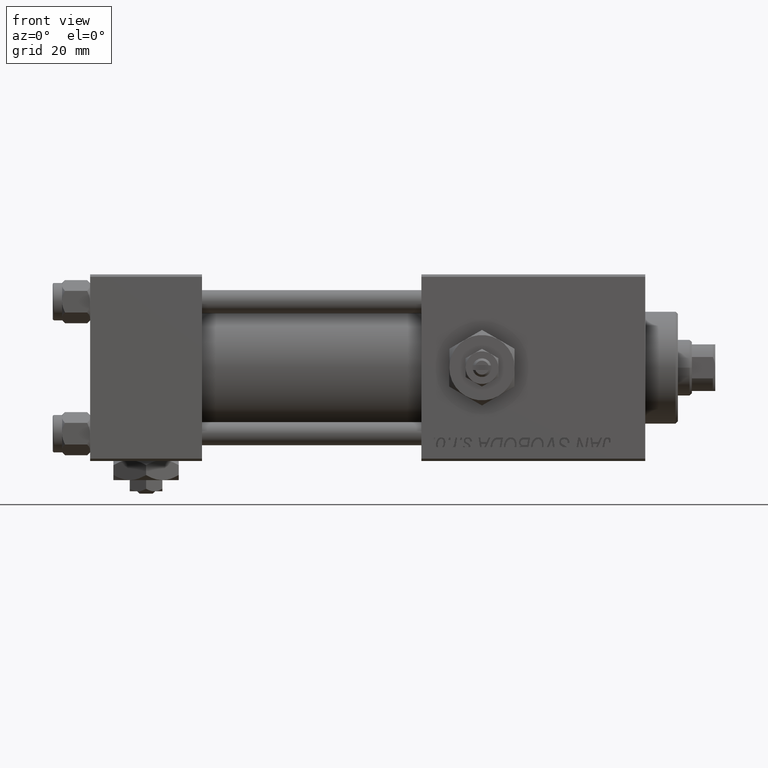
[diagram: clean part render]
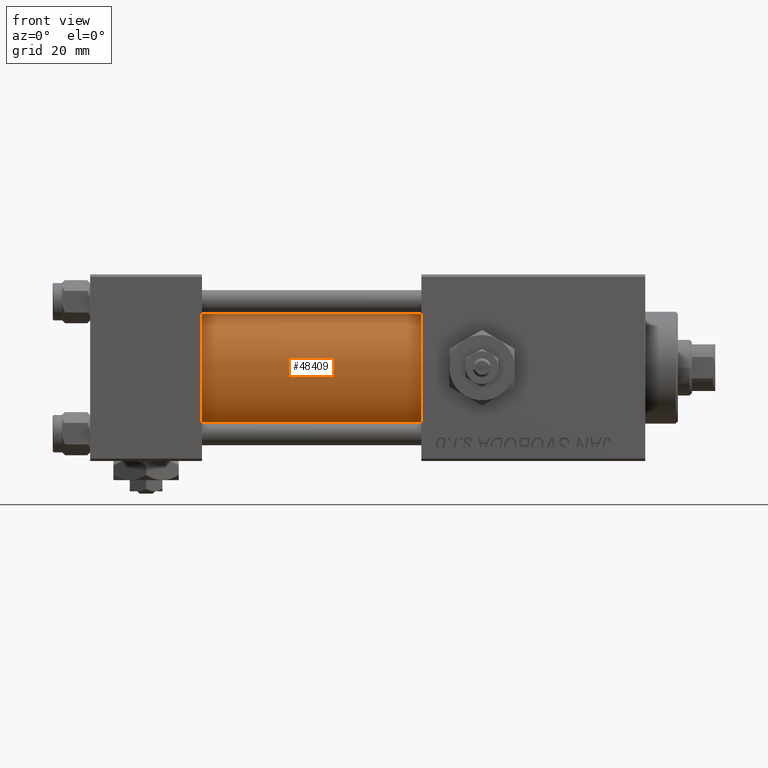
[diagram: same view with one face highlighted and labeled with its STEP entity id]
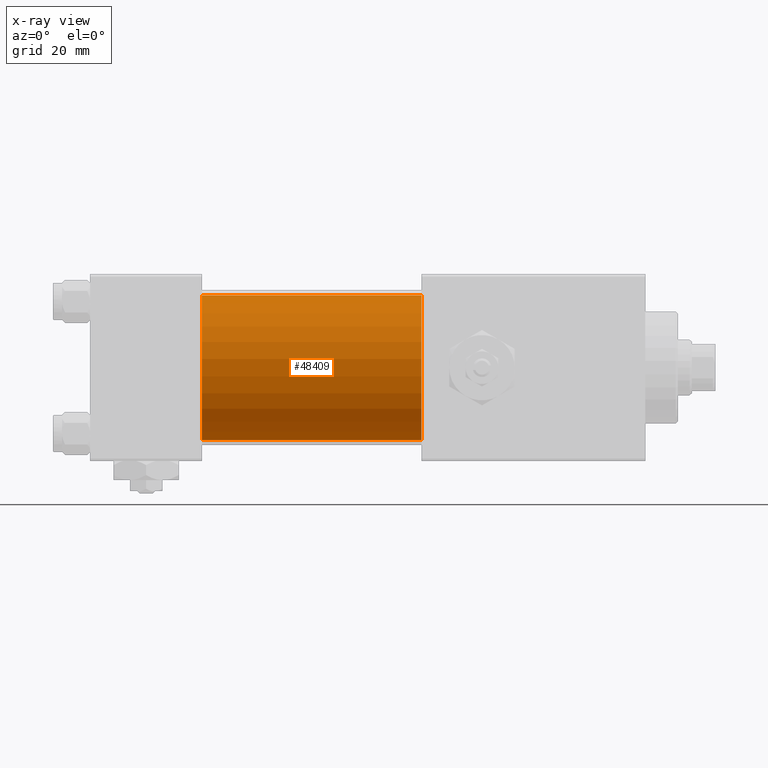
[diagram: x-ray of the same camera — body ghosted, the highlighted face saturated]
A machine part, front view. The second image highlights one B-rep face of the part: STEP entity #48409.
The next image is the same camera in x-ray: the body ghosted, the highlighted face saturated — about 0% of this face is hidden behind the body in this view.
In plain terms, the highlighted cylindrical surface (partial cylindrical patch) has radius 15.5 mm, axis along (-1, -0, -0).
Its self-contained STEP definition (entity closure, byte-faithful):
#291 = VECTOR ( 'NONE', #10884, 1000.000000000000000 ) ;
#1906 = DIRECTION ( 'NONE',  ( 1.000000000000000000, 0.000000000000000000, 0.000000000000000000 ) ) ;
#2515 = EDGE_CURVE ( 'NONE', #20826, #47182, #38940, .T. ) ;
#2949 = CARTESIAN_POINT ( 'NONE',  ( 71.00000000000001421, -2.602085213965210642E-15, 0.000000000000000000 ) ) ;
#3675 = CYLINDRICAL_SURFACE ( 'NONE', #7790, 15.50000000000000000 ) ;
#4188 = CARTESIAN_POINT ( 'NONE',  ( 71.00000000000001421, -2.602085213965210642E-15, 0.000000000000000000 ) ) ;
#4597 = VERTEX_POINT ( 'NONE', #38298 ) ;
#6467 = CARTESIAN_POINT ( 'NONE',  ( 71.00000000000001421, -2.602085213965210642E-15, 15.50000000000000000 ) ) ;
#7790 = AXIS2_PLACEMENT_3D ( 'NONE', #4188, #47854, #27998 ) ;
#8021 = ORIENTED_EDGE ( 'NONE', *, *, #33082, .F. ) ;
#8281 = CARTESIAN_POINT ( 'NONE',  ( 24.00000000000000000, -2.602085213965210642E-15, 15.50000000000000000 ) ) ;
#8382 = CARTESIAN_POINT ( 'NONE',  ( 71.00000000000001421, -7.038826752868131828E-16, -15.50000000000000000 ) ) ;
#10541 = EDGE_LOOP ( 'NONE', ( #39642, #8021, #17571, #22385 ) ) ;
#10884 = DIRECTION ( 'NONE',  ( -1.000000000000000000, -0.000000000000000000, -0.000000000000000000 ) ) ;
#12802 = DIRECTION ( 'NONE',  ( -1.000000000000000000, -0.000000000000000000, -0.000000000000000000 ) ) ;
#15382 = AXIS2_PLACEMENT_3D ( 'NONE', #2949, #1906, #50329 ) ;
#16524 = LINE ( 'NONE', #20482, #35431 ) ;
#17571 = ORIENTED_EDGE ( 'NONE', *, *, #2515, .T. ) ;
#19364 = CARTESIAN_POINT ( 'NONE',  ( 24.00000000000000000, -2.602085213965210642E-15, 0.000000000000000000 ) ) ;
#19626 = DIRECTION ( 'NONE',  ( 1.000000000000000000, 0.000000000000000000, 0.000000000000000000 ) ) ;
#20482 = CARTESIAN_POINT ( 'NONE',  ( 71.00000000000001421, -7.038826752868131828E-16, -15.50000000000000000 ) ) ;
#20826 = VERTEX_POINT ( 'NONE', #6467 ) ;
#22385 = ORIENTED_EDGE ( 'NONE', *, *, #30084, .T. ) ;
#27008 = VERTEX_POINT ( 'NONE', #8382 ) ;
#27998 = DIRECTION ( 'NONE',  ( 0.000000000000000000, 0.000000000000000000, 1.000000000000000000 ) ) ;
#28262 = FACE_OUTER_BOUND ( 'NONE', #10541, .T. ) ;
#30084 = EDGE_CURVE ( 'NONE', #47182, #4597, #38283, .T. ) ;
#30995 = CARTESIAN_POINT ( 'NONE',  ( 71.00000000000001421, -2.602085213965210642E-15, 15.50000000000000000 ) ) ;
#33082 = EDGE_CURVE ( 'NONE', #20826, #27008, #41615, .T. ) ;
#35431 = VECTOR ( 'NONE', #12802, 1000.000000000000000 ) ;
#35495 = DIRECTION ( 'NONE',  ( 0.000000000000000000, 0.000000000000000000, 1.000000000000000000 ) ) ;
#37798 = EDGE_CURVE ( 'NONE', #27008, #4597, #16524, .T. ) ;
#38283 = CIRCLE ( 'NONE', #39943, 15.50000000000000000 ) ;
#38298 = CARTESIAN_POINT ( 'NONE',  ( 24.00000000000000000, -7.038826752868131828E-16, -15.50000000000000000 ) ) ;
#38940 = LINE ( 'NONE', #30995, #291 ) ;
#39642 = ORIENTED_EDGE ( 'NONE', *, *, #37798, .F. ) ;
#39943 = AXIS2_PLACEMENT_3D ( 'NONE', #19364, #19626, #35495 ) ;
#41615 = CIRCLE ( 'NONE', #15382, 15.50000000000000000 ) ;
#47182 = VERTEX_POINT ( 'NONE', #8281 ) ;
#47854 = DIRECTION ( 'NONE',  ( -1.000000000000000000, -0.000000000000000000, -0.000000000000000000 ) ) ;
#48409 = ADVANCED_FACE ( 'NONE', ( #28262 ), #3675, .T. ) ;
#50329 = DIRECTION ( 'NONE',  ( 0.000000000000000000, 0.000000000000000000, -1.000000000000000000 ) ) ;